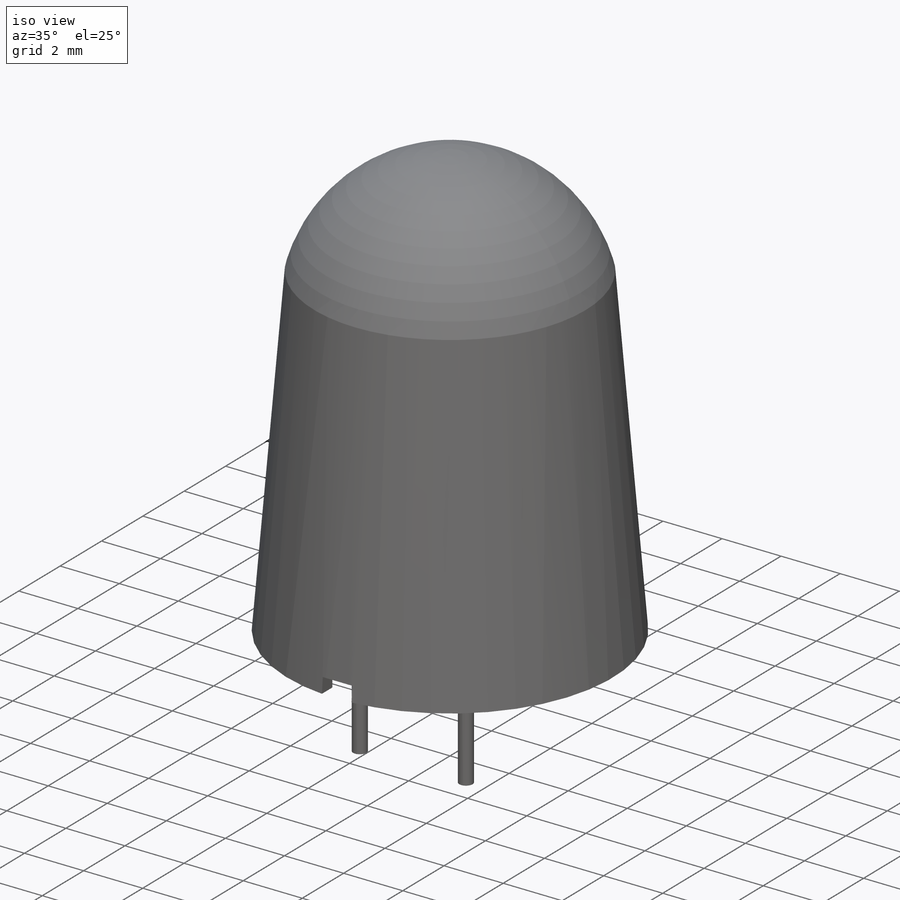
[diagram: iso view]
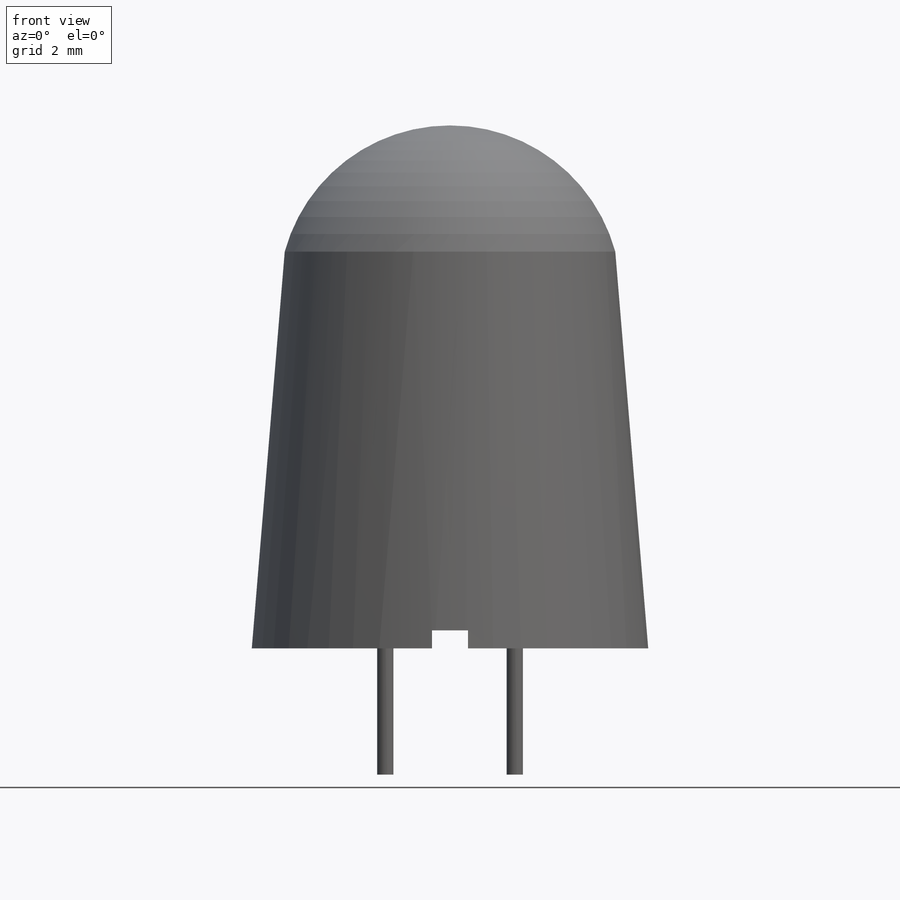
[diagram: front view]
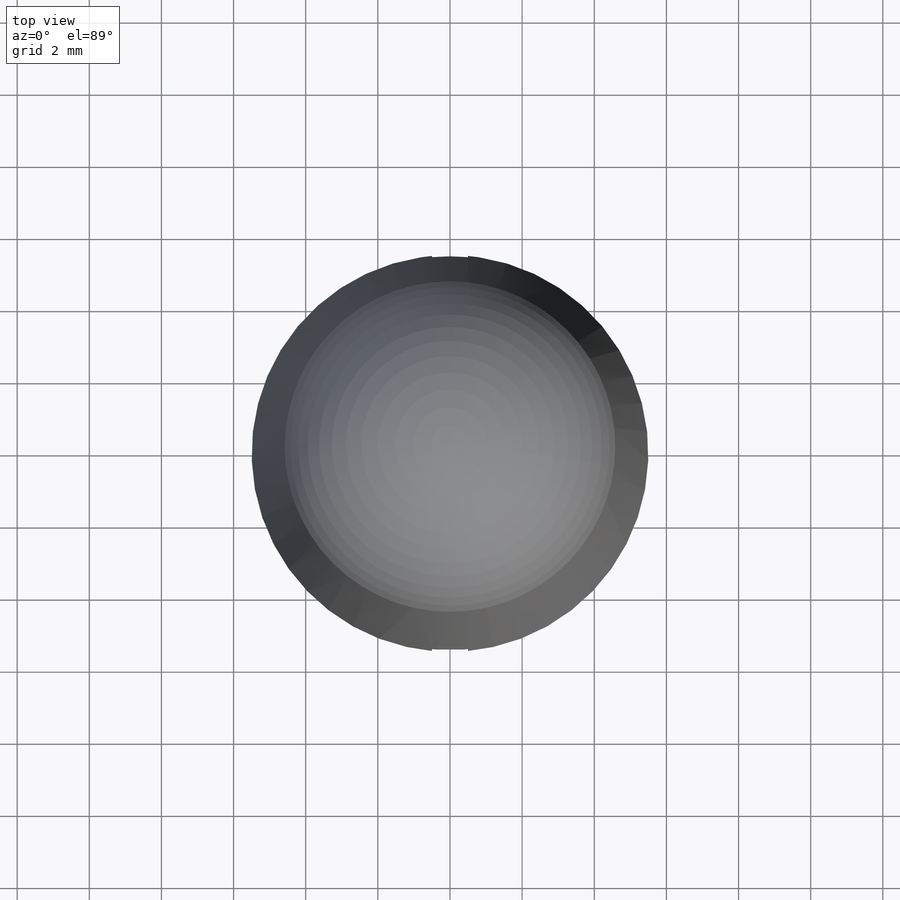
[diagram: top view]
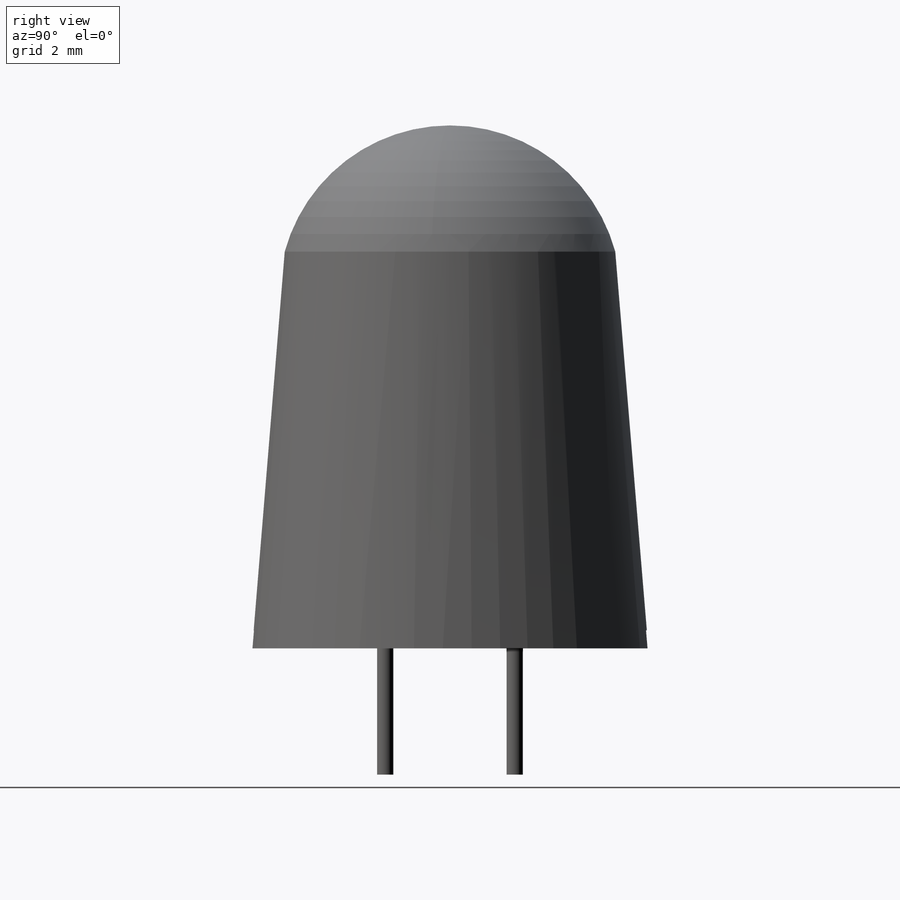
[diagram: right view]
SOLIDWORKS PART (.sldprt)
format: sldprt  version: not decoded by parser v0  size: 203,776 bytes
history: native  units: mm
features: sketch x4, cut_extrude x2, material x1, revolve x1, extrude x1 (+12 scaffold rows collapsed)
feature tree (21):
  scaffold x12  (default folders/planes/origin — collapsed)
  material  "Material <not specified>"
  sketch  "Sketch1"  dims[D3=4.75mm D1=5.5mm D2=14.5mm D4=11.0mm]
  revolve  "Revolve1"  Angle=360deg
  sketch  "Sketch2"  dims[D1=10.0mm]
  cut_extrude  "Cut-Extrude1"  Depth=1mm
  sketch  "Sketch3"  dims[c1.D1=1.0mm c1.D2=~0.460177mm c2.D2=90.0deg c3.D2=1.0mm]
  cut_extrude  "Cut-Extrude2"  Depth=12mm
  sketch  "Sketch4"  dims[c1.D1=5.08mm c1.D5=0.45mm c1.D2=~7.885752mm c2.D2=135.0deg c2.D3=~1.871877mm c3.D3=~87.526968deg c4.D3=~7.885752mm c5.D3=45.0deg c5.D4=~1.796051mm c6.D4=90.0deg c6.D3=2.54mm c7.D3=45.0deg]
  extrude  "Boss-Extrude1"  Depth=4.5mm
decode coverage: 8 of 8 modeling features carry decoded parameters
note: ~ marks probable driven/reference dimensions
note: suppression state not decoded; provenance and decode notes live in map.json
